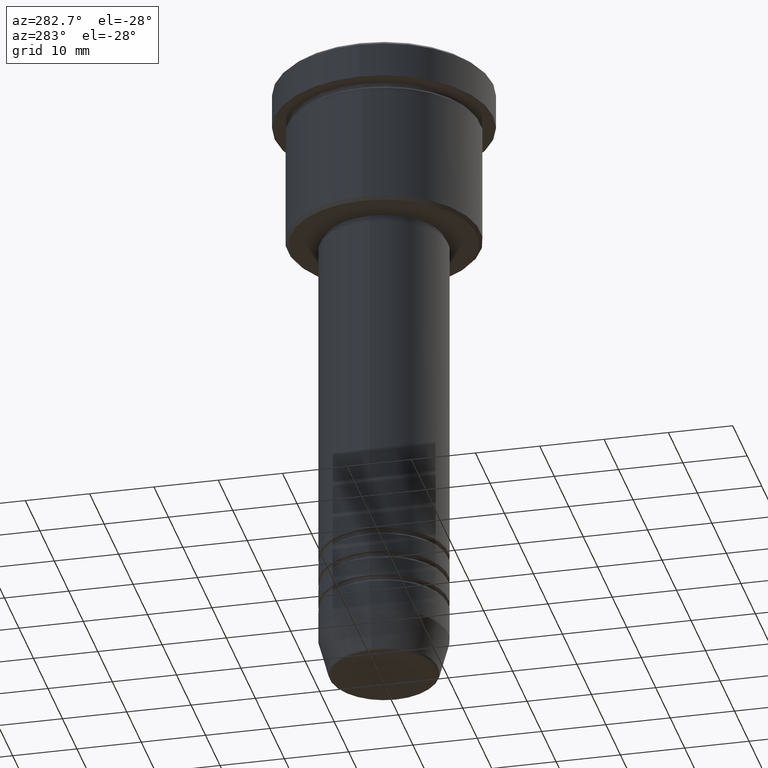
[diagram: clean part render]
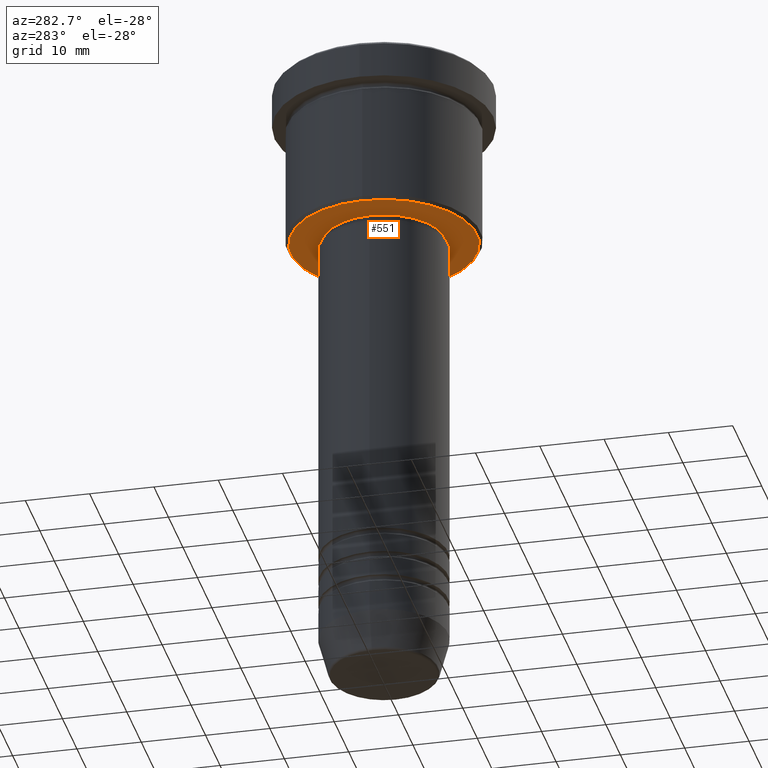
[diagram: same view with one face highlighted and labeled with its STEP entity id]
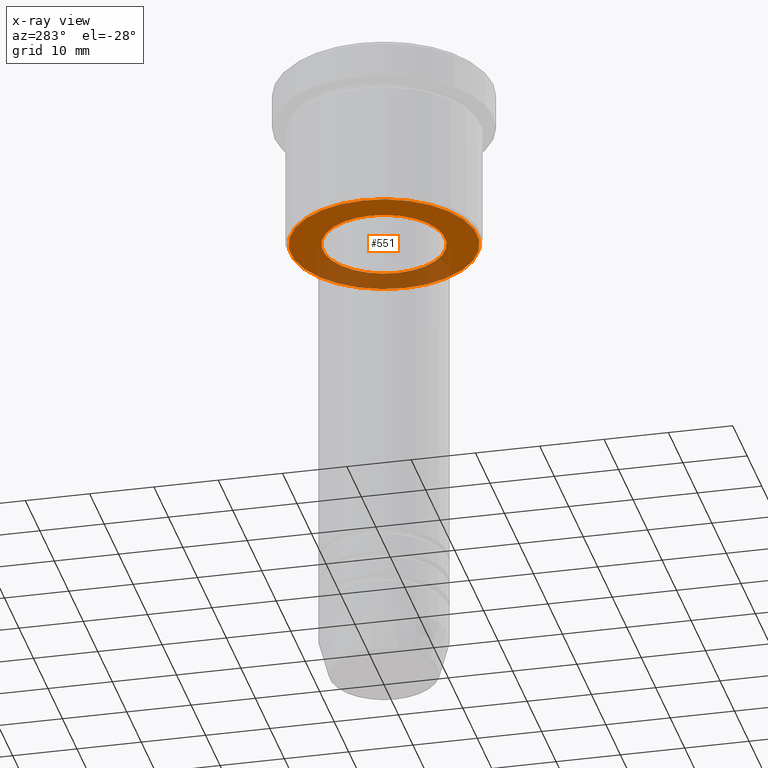
[diagram: x-ray of the same camera — body ghosted, the highlighted face saturated]
A machine part, auxiliary view. The second image highlights one B-rep face of the part: STEP entity #551.
The next image is the same camera in x-ray: the body ghosted, the highlighted face saturated — about 29% of this face is hidden behind the body in this view.
In plain terms, the highlighted planar face has unit normal (0, 0, -1).
Its self-contained STEP definition (entity closure, byte-faithful):
#10 = CARTESIAN_POINT ( 'NONE',  ( -9.500000000000001776, 1.163414459189985682E-15, -25.99999999999999645 ) ) ;
#50 = EDGE_CURVE ( 'NONE', #374, #178, #547, .T. ) ;
#125 = AXIS2_PLACEMENT_3D ( 'NONE', #458, #389, #824 ) ;
#143 = CIRCLE ( 'NONE', #125, 9.500000000000001776 ) ;
#163 = DIRECTION ( 'NONE',  ( -1.000000000000000000, 0.000000000000000000, 0.000000000000000000 ) ) ;
#178 = VERTEX_POINT ( 'NONE', #198 ) ;
#188 = PLANE ( 'NONE',  #846 ) ;
#198 = CARTESIAN_POINT ( 'NONE',  ( 14.49999999999999822, 0.000000000000000000, -25.99999999999999645 ) ) ;
#207 = DIRECTION ( 'NONE',  ( -1.000000000000000000, 0.000000000000000000, 0.000000000000000000 ) ) ;
#227 = CARTESIAN_POINT ( 'NONE',  ( 0.000000000000000000, 0.000000000000000000, -25.99999999999999645 ) ) ;
#239 = EDGE_CURVE ( 'NONE', #523, #894, #796, .T. ) ;
#268 = DIRECTION ( 'NONE',  ( 0.000000000000000000, 0.000000000000000000, -1.000000000000000000 ) ) ;
#308 = ORIENTED_EDGE ( 'NONE', *, *, #239, .T. ) ;
#313 = EDGE_LOOP ( 'NONE', ( #738, #414 ) ) ;
#356 = EDGE_CURVE ( 'NONE', #178, #374, #1022, .T. ) ;
#374 = VERTEX_POINT ( 'NONE', #1081 ) ;
#389 = DIRECTION ( 'NONE',  ( -0.000000000000000000, -0.000000000000000000, 1.000000000000000000 ) ) ;
#414 = ORIENTED_EDGE ( 'NONE', *, *, #50, .T. ) ;
#435 = CARTESIAN_POINT ( 'NONE',  ( 9.500000000000001776, 0.000000000000000000, -25.99999999999999645 ) ) ;
#458 = CARTESIAN_POINT ( 'NONE',  ( 0.000000000000000000, 0.000000000000000000, -25.99999999999999645 ) ) ;
#487 = AXIS2_PLACEMENT_3D ( 'NONE', #227, #1153, #1037 ) ;
#523 = VERTEX_POINT ( 'NONE', #10 ) ;
#547 = CIRCLE ( 'NONE', #1047, 14.49999999999999822 ) ;
#551 = ADVANCED_FACE ( 'NONE', ( #833, #1017 ), #188, .T. ) ;
#686 = EDGE_LOOP ( 'NONE', ( #1054, #308 ) ) ;
#738 = ORIENTED_EDGE ( 'NONE', *, *, #356, .T. ) ;
#796 = CIRCLE ( 'NONE', #487, 9.500000000000001776 ) ;
#820 = DIRECTION ( 'NONE',  ( -1.000000000000000000, 0.000000000000000000, -0.000000000000000000 ) ) ;
#824 = DIRECTION ( 'NONE',  ( 1.000000000000000000, 0.000000000000000000, 0.000000000000000000 ) ) ;
#833 = FACE_OUTER_BOUND ( 'NONE', #313, .T. ) ;
#838 = CARTESIAN_POINT ( 'NONE',  ( 0.000000000000000000, 15.00000000000000000, -25.99999999999999645 ) ) ;
#846 = AXIS2_PLACEMENT_3D ( 'NONE', #838, #1026, #820 ) ;
#873 = DIRECTION ( 'NONE',  ( 0.000000000000000000, 0.000000000000000000, -1.000000000000000000 ) ) ;
#882 = AXIS2_PLACEMENT_3D ( 'NONE', #1142, #873, #207 ) ;
#894 = VERTEX_POINT ( 'NONE', #435 ) ;
#1017 = FACE_BOUND ( 'NONE', #686, .T. ) ;
#1022 = CIRCLE ( 'NONE', #882, 14.49999999999999822 ) ;
#1026 = DIRECTION ( 'NONE',  ( 0.000000000000000000, 0.000000000000000000, -1.000000000000000000 ) ) ;
#1037 = DIRECTION ( 'NONE',  ( 1.000000000000000000, 0.000000000000000000, 0.000000000000000000 ) ) ;
#1040 = EDGE_CURVE ( 'NONE', #894, #523, #143, .T. ) ;
#1047 = AXIS2_PLACEMENT_3D ( 'NONE', #1096, #268, #163 ) ;
#1054 = ORIENTED_EDGE ( 'NONE', *, *, #1040, .T. ) ;
#1081 = CARTESIAN_POINT ( 'NONE',  ( -14.49999999999999822, 1.806354028742345802E-15, -25.99999999999999645 ) ) ;
#1096 = CARTESIAN_POINT ( 'NONE',  ( 0.000000000000000000, 0.000000000000000000, -25.99999999999999645 ) ) ;
#1142 = CARTESIAN_POINT ( 'NONE',  ( 0.000000000000000000, 0.000000000000000000, -25.99999999999999645 ) ) ;
#1153 = DIRECTION ( 'NONE',  ( -0.000000000000000000, -0.000000000000000000, 1.000000000000000000 ) ) ;